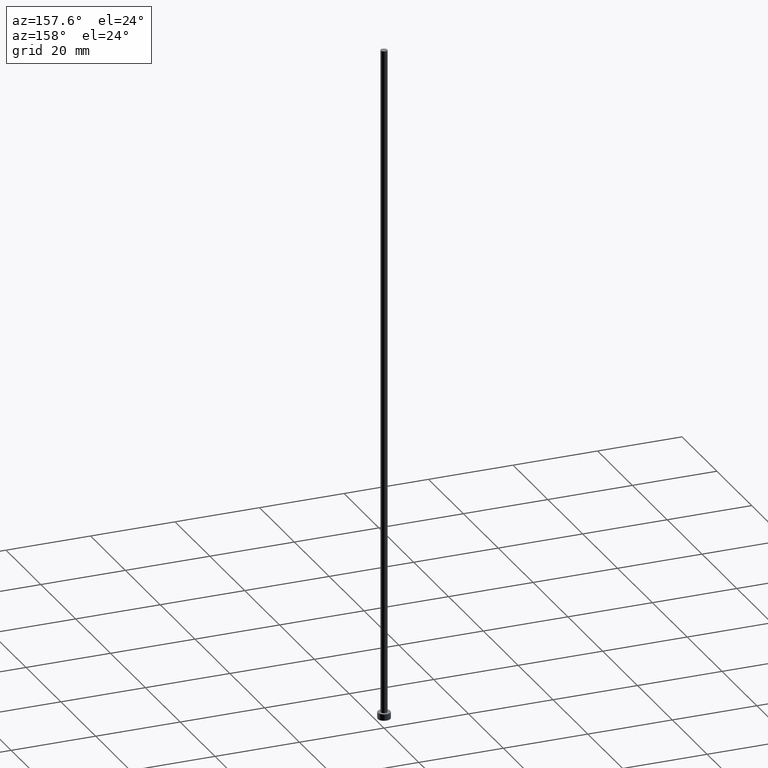
[diagram: clean part render]
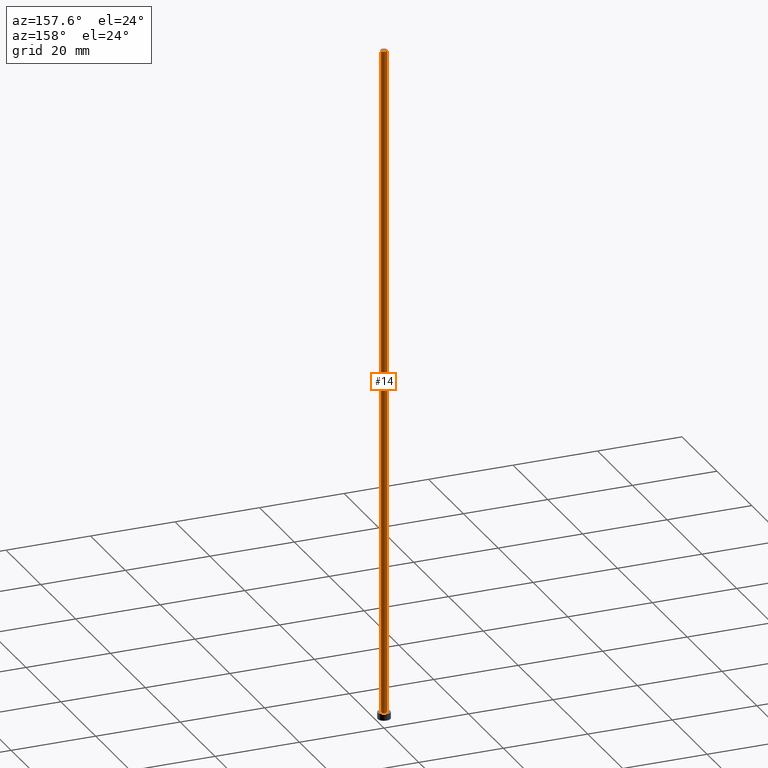
[diagram: same view with one face highlighted and labeled with its STEP entity id]
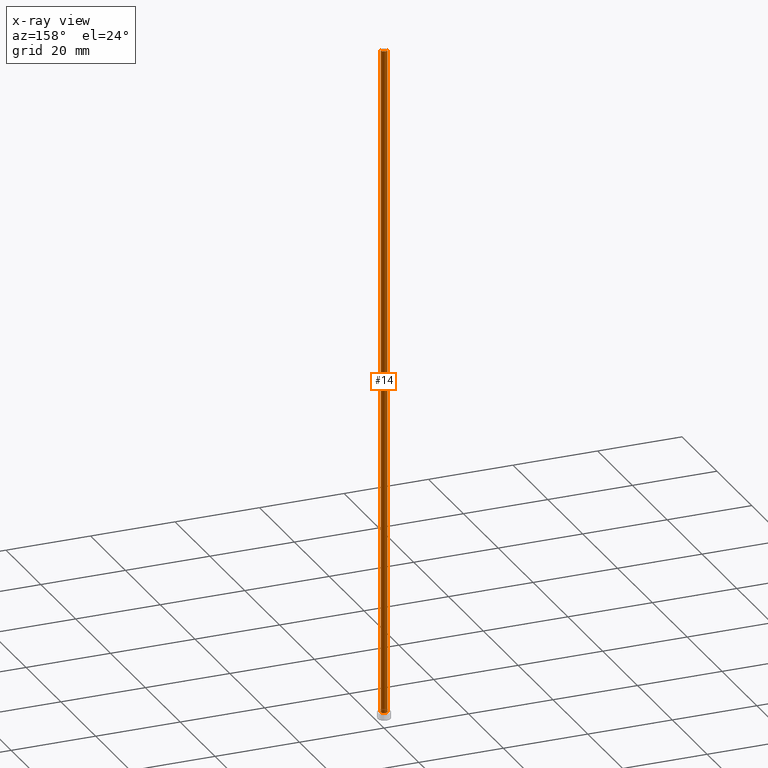
[diagram: x-ray of the same camera — body ghosted, the highlighted face saturated]
A machine part, auxiliary view. The second image highlights one B-rep face of the part: STEP entity #14.
The next image is the same camera in x-ray: the body ghosted, the highlighted face saturated — about 0% of this face is hidden behind the body in this view.
In plain terms, the highlighted cylindrical surface (edge-blend (fillet) strip) has radius 0.8 mm, axis along (-0, -0, -1).
Its self-contained STEP definition (entity closure, byte-faithful):
#10 = EDGE_LOOP ( 'NONE', ( #89, #101, #91, #28 ) ) ;
#14 = ADVANCED_FACE ( 'NONE', ( #19 ), #182, .T. ) ;
#19 = FACE_OUTER_BOUND ( 'NONE', #10, .T. ) ;
#22 = CARTESIAN_POINT ( 'NONE',  ( 0.000000000000000000, 0.000000000000000000, 160.0000000000000000 ) ) ;
#28 = ORIENTED_EDGE ( 'NONE', *, *, #208, .F. ) ;
#30 = CARTESIAN_POINT ( 'NONE',  ( 0.8000000000000000444, 9.797174393178826150E-17, 160.0000000000000000 ) ) ;
#33 = LINE ( 'NONE', #72, #209 ) ;
#34 = VERTEX_POINT ( 'NONE', #156 ) ;
#35 = VERTEX_POINT ( 'NONE', #90 ) ;
#43 = VECTOR ( 'NONE', #140, 1000.000000000000000 ) ;
#46 = CARTESIAN_POINT ( 'NONE',  ( 0.8000000000000000444, 9.797174393178826150E-17, 1.500000000000000000 ) ) ;
#56 = DIRECTION ( 'NONE',  ( 1.000000000000000000, 0.000000000000000000, 0.000000000000000000 ) ) ;
#58 = AXIS2_PLACEMENT_3D ( 'NONE', #22, #97, #56 ) ;
#66 = VERTEX_POINT ( 'NONE', #30 ) ;
#72 = CARTESIAN_POINT ( 'NONE',  ( 0.8000000000000000444, 9.797174393178826150E-17, 160.0000000000000000 ) ) ;
#77 = LINE ( 'NONE', #105, #43 ) ;
#85 = DIRECTION ( 'NONE',  ( -1.000000000000000000, 0.000000000000000000, 0.000000000000000000 ) ) ;
#86 = DIRECTION ( 'NONE',  ( 1.000000000000000000, 0.000000000000000000, 0.000000000000000000 ) ) ;
#89 = ORIENTED_EDGE ( 'NONE', *, *, #245, .F. ) ;
#90 = CARTESIAN_POINT ( 'NONE',  ( -0.8000000000000000444, 0.000000000000000000, 160.0000000000000000 ) ) ;
#91 = ORIENTED_EDGE ( 'NONE', *, *, #228, .T. ) ;
#97 = DIRECTION ( 'NONE',  ( 0.000000000000000000, 0.000000000000000000, 1.000000000000000000 ) ) ;
#101 = ORIENTED_EDGE ( 'NONE', *, *, #127, .T. ) ;
#105 = CARTESIAN_POINT ( 'NONE',  ( -0.8000000000000000444, 0.000000000000000000, 160.0000000000000000 ) ) ;
#115 = CARTESIAN_POINT ( 'NONE',  ( 0.000000000000000000, 0.000000000000000000, 160.0000000000000000 ) ) ;
#119 = VERTEX_POINT ( 'NONE', #46 ) ;
#127 = EDGE_CURVE ( 'NONE', #66, #119, #33, .T. ) ;
#130 = AXIS2_PLACEMENT_3D ( 'NONE', #115, #152, #85 ) ;
#136 = CIRCLE ( 'NONE', #195, 0.8000000000000000444 ) ;
#140 = DIRECTION ( 'NONE',  ( -0.000000000000000000, -0.000000000000000000, -1.000000000000000000 ) ) ;
#143 = DIRECTION ( 'NONE',  ( 0.000000000000000000, 0.000000000000000000, 1.000000000000000000 ) ) ;
#152 = DIRECTION ( 'NONE',  ( -0.000000000000000000, -0.000000000000000000, -1.000000000000000000 ) ) ;
#156 = CARTESIAN_POINT ( 'NONE',  ( -0.8000000000000000444, 0.000000000000000000, 1.500000000000000000 ) ) ;
#182 = CYLINDRICAL_SURFACE ( 'NONE', #130, 0.8000000000000000444 ) ;
#195 = AXIS2_PLACEMENT_3D ( 'NONE', #216, #143, #86 ) ;
#208 = EDGE_CURVE ( 'NONE', #35, #34, #77, .T. ) ;
#209 = VECTOR ( 'NONE', #224, 1000.000000000000000 ) ;
#216 = CARTESIAN_POINT ( 'NONE',  ( 0.000000000000000000, 0.000000000000000000, 1.500000000000000000 ) ) ;
#219 = CIRCLE ( 'NONE', #58, 0.8000000000000000444 ) ;
#224 = DIRECTION ( 'NONE',  ( -0.000000000000000000, -0.000000000000000000, -1.000000000000000000 ) ) ;
#228 = EDGE_CURVE ( 'NONE', #119, #34, #136, .T. ) ;
#245 = EDGE_CURVE ( 'NONE', #66, #35, #219, .T. ) ;